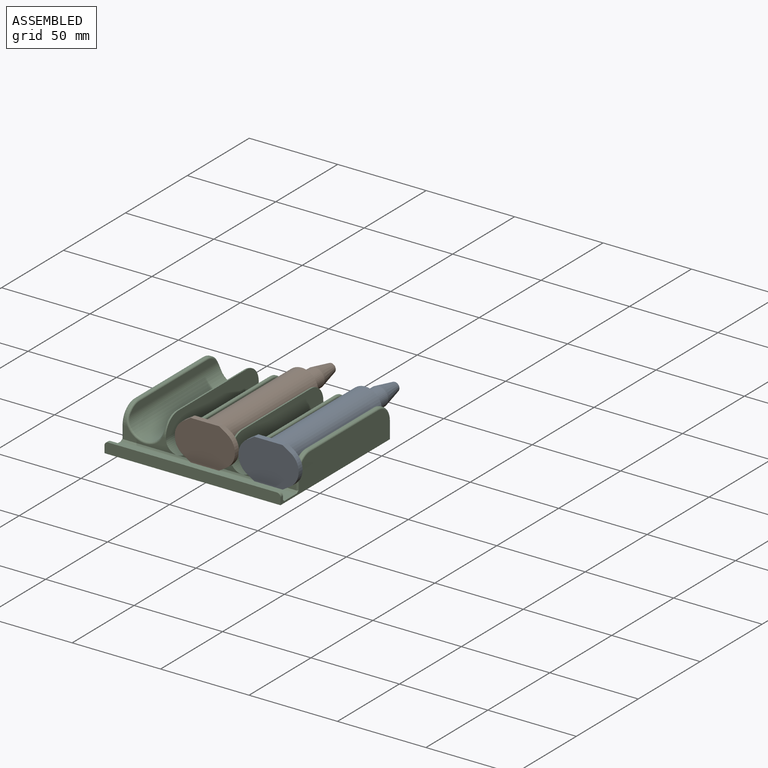
[diagram: assembled view]
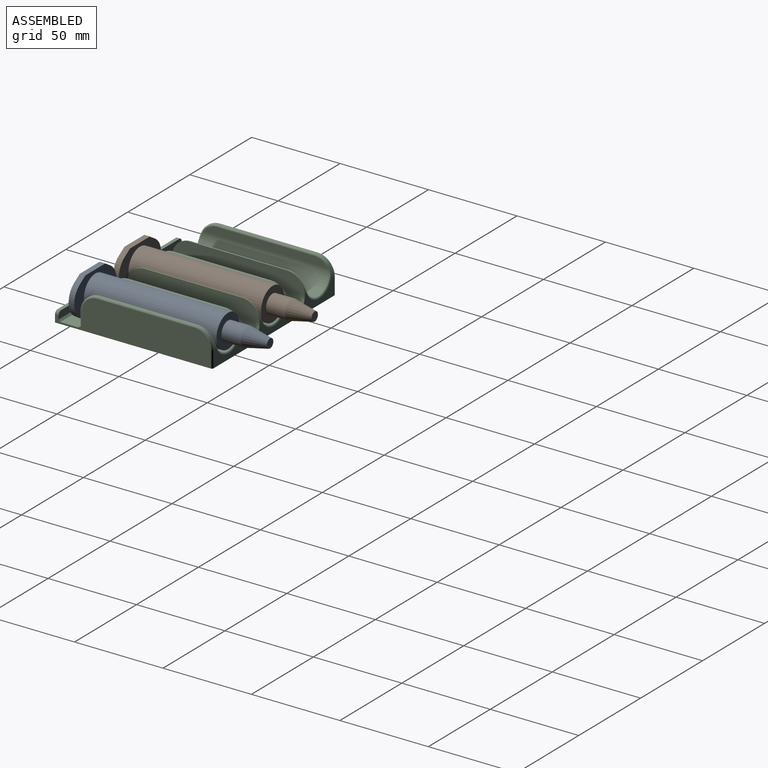
[diagram: assembled view, second angle]
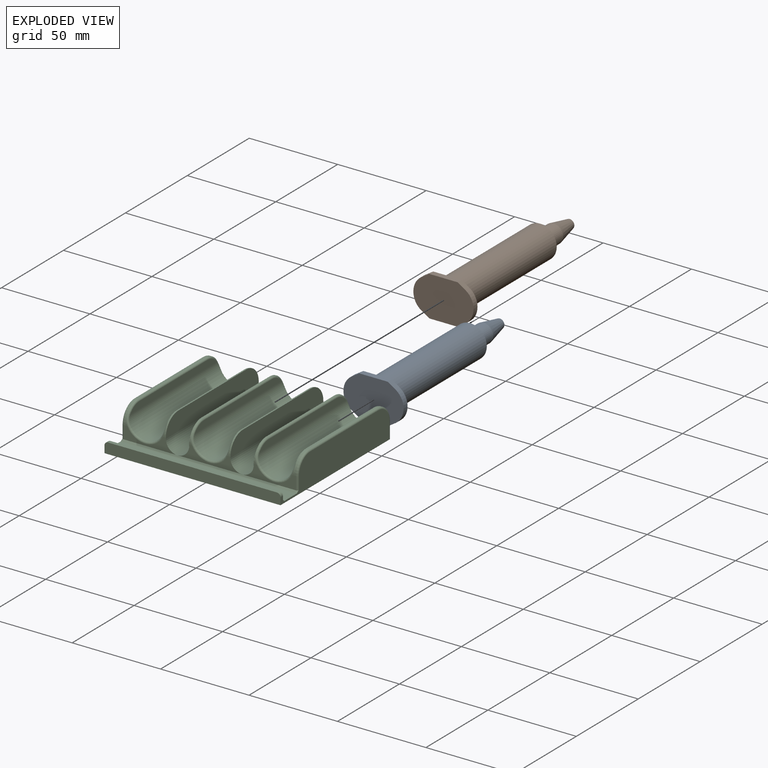
[diagram: exploded view]
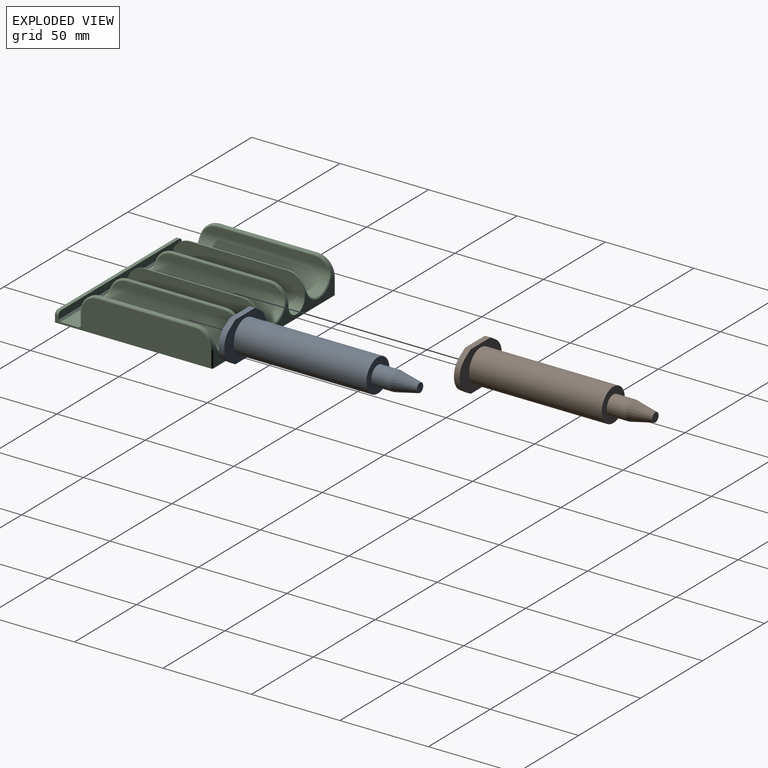
[diagram: exploded view, second angle]
ASSEMBLY  parts=3 mates=2
PART A: 19 faces, bbox 34x22.8x102 mm
  f0: plane 3.2x0.32mm, normal (1,0,0), area 1mm2, adj f1,f11,f12,f13
  f1: cylinder r=10mm len=8.44mm, axis (0,0,-1), area 32.1mm2, adj f0,f2,f12,f13
  f2: plane 4.37x3.2mm, normal (0.54,0.84,0), area 16.6mm2, adj f1,f3,f12,f13
  f3: plane 16x3.2mm, normal (0,1,0), area 51.2mm2, adj f2,f4,f12,f13
  f4: plane 4.37x3.2mm, normal (-0.54,0.84,0), area 16.6mm2, adj f3,f5,f12,f13
  f5: cylinder r=10mm len=8.44mm, axis (0,0,-1), area 32.1mm2, adj f4,f6,f12,f13
  f6: plane 3.2x0.32mm, normal (-1,0,0), area 1mm2, adj f5,f7,f12,f13
  f7: cylinder r=10mm len=8.44mm, axis (0,0,-1), area 32.1mm2, adj f6,f8,f12,f13
  f8: plane 4.37x3.2mm, normal (-0.54,-0.84,0), area 16.6mm2, adj f7,f9,f12,f13
  f9: plane 16x3.2mm, normal (0,-1,0), area 51.2mm2, adj f8,f10,f12,f13
  f10: plane 4.37x3.2mm, normal (0.54,-0.84,0), area 16.6mm2, adj f9,f11,f12,f13
  f11: cylinder r=10mm len=8.44mm, axis (0,0,-1), area 32.1mm2, adj f0,f10,f12,f13
  f12: plane 34x22.75mm, normal (0,0,1), area 380mm2, adj f0,f1,f2,f3,f4,f5,f6,f7
  f13: plane 34x22.75mm, normal (0,0,-1), area 651.7mm2, adj f0,f1,f2,f3,f4,f5,f6,f7
  f14: cylinder r=9.3mm len=75mm, axis (0,0,-1), area 4382.5mm2, adj f12,f15
  f15: plane 18.6x18.6mm, normal (0,0,1), area 181.8mm2, adj f14,f16
  f16: cylinder r=5.35mm len=10.8mm, axis (0,0,-1), area 363mm2, adj f15,f17
  f17: cone r=5.35mm half-angle=12deg, axis (0,0,-1), area 331.4mm2, adj f16,f18
  f18: plane 5.17x5.17mm, normal (0,0,1), area 21mm2, adj f17
PART B: same geometry as A
PART C: 96 faces, bbox 101.5x89.8x20.1 mm
  f0: plane 30.5x7.25mm, normal (0,-1,0), area 92.5mm2, adj f24,f25,f36,f37,f44,f80,f91
  f1: plane 36.5x7.25mm, normal (0,-1,0), area 97.5mm2, adj f16,f17,f23,f24,f32,f33,f56,f91
  f2: plane 30.5x7.25mm, normal (0,-1,0), area 92.5mm2, adj f15,f16,f34,f35,f68,f85,f91
  f3: plane 69.97x4mm, normal (-1,0,0), area 262.1mm2, adj f4,f48,f50,f52
  f4: cylinder r=10.25mm len=73mm, axis (0,-1,0), area 2341.7mm2, adj f3,f5,f44,f45,f46,f53,f54,f55
  f5: plane 69.97x4mm, normal (1,0,0), area 262.1mm2, adj f4,f47,f49,f51
  f6: plane 55x1mm, normal (0,0,1), area 55mm2, adj f36,f42,f49,f82
  f7: plane 88x18.25mm, normal (-1,0,0), area 1320.1mm2, adj f8,f28,f29,f30,f80,f81,f82,f83
  f8: plane 99.5x89mm, normal (0,0,-1), area 8855.1mm2, adj f7,f9,f27,f30,f84,f89
  f9: plane 88x18.25mm, normal (1,0,0), area 1320.1mm2, adj f8,f28,f29,f30,f85,f86,f87,f88
  f10: plane 55x1mm, normal (0,0,1), area 55mm2, adj f35,f41,f74,f87
  f11: plane 69.97x4mm, normal (-1,0,0), area 262.1mm2, adj f12,f72,f74,f76
  f12: cylinder r=10.25mm len=73mm, axis (0,-1,0), area 2341.7mm2, adj f11,f13,f68,f69,f70,f77,f78,f79
  f13: plane 69.97x4mm, normal (1,0,0), area 262.1mm2, adj f12,f71,f73,f75
  f14: plane 55x0.4mm, normal (0,0,1), area 22mm2, adj f15,f34,f40,f73
  f15: plane 75x10.65mm, normal (-1,0,0), area 755.8mm2, adj f2,f14,f16,f27,f34,f40
  f16: cylinder r=6.6mm len=75mm, axis (0,-1,0), area 1555.1mm2, adj f1,f2,f15,f17,f27
  f17: plane 75x10.65mm, normal (1,0,0), area 755.8mm2, adj f1,f16,f18,f27,f33,f39
  f18: plane 55x0.4mm, normal (0,0,1), area 22mm2, adj f17,f33,f39,f62
  f19: plane 69.97x4mm, normal (-1,0,0), area 262.1mm2, adj f20,f60,f62,f64
  f20: cylinder r=10.25mm len=73mm, axis (0,-1,0), area 2341.7mm2, adj f19,f21,f56,f57,f58,f65,f66,f67
  f21: plane 69.97x4mm, normal (1,0,0), area 262.1mm2, adj f20,f59,f61,f63
  f22: plane 55x0.4mm, normal (0,0,1), area 22mm2, adj f23,f32,f38,f61
  f23: plane 75x10.65mm, normal (-1,0,0), area 755.8mm2, adj f1,f22,f24,f27,f32,f38
  f24: cylinder r=6.6mm len=75mm, axis (0,-1,0), area 1555.1mm2, adj f0,f1,f23,f25,f27
  f25: plane 75x10.65mm, normal (1,0,0), area 755.8mm2, adj f0,f24,f26,f27,f37,f43
  f26: plane 55x0.4mm, normal (0,0,1), area 22mm2, adj f25,f37,f43,f50
  f27: plane 97.5x9.25mm, normal (0,1,0), area 477.5mm2, adj f8,f15,f16,f17,f23,f24,f25,f38
  f28: plane 99.5x10.27mm, normal (0,0,1), area 995.2mm2, adj f7,f9,f90,f91,f92,f93
  f29: plane 99.5x4mm, normal (0,1,0), area 396.3mm2, adj f7,f9,f31,f93,f94,f95
  f30: plane 99.5x6mm, normal (0,-1,0), area 595.3mm2, adj f7,f8,f9,f31,f94,f95
  f31: plane 95.5x2mm, normal (0,0,1), area 191mm2, adj f29,f30,f94,f95
  f32: cylinder r=10mm len=10mm, axis (-1,0,0), area 8.4mm2, adj f1,f22,f23,f57,f59
  f33: cylinder r=10mm len=10mm, axis (-1,0,0), area 8.4mm2, adj f1,f17,f18,f58,f60
  f34: cylinder r=10mm len=10mm, axis (-1,0,0), area 8.4mm2, adj f2,f14,f15,f69,f71
  f35: cylinder r=10mm len=10mm, axis (-1,0,0), area 17.9mm2, adj f2,f10,f70,f72,f86
  f36: cylinder r=10mm len=10mm, axis (-1,0,0), area 17.9mm2, adj f0,f6,f45,f47,f81
  f37: cylinder r=10mm len=10mm, axis (-1,0,0), area 8.4mm2, adj f0,f25,f26,f46,f48
  f38: cylinder r=10mm len=10mm, axis (1,0,0), area 8.4mm2, adj f22,f23,f27,f63,f65
  f39: cylinder r=10mm len=10mm, axis (1,0,0), area 8.4mm2, adj f17,f18,f27,f64,f66
  f40: cylinder r=10mm len=10mm, axis (1,0,0), area 8.4mm2, adj f14,f15,f27,f75,f77
  f41: cylinder r=10mm len=10mm, axis (1,0,0), area 17.9mm2, adj f10,f27,f76,f78,f88
  f42: cylinder r=10mm len=10mm, axis (1,0,0), area 17.9mm2, adj f6,f27,f51,f53,f83
  f43: cylinder r=10mm len=10mm, axis (1,0,0), area 8.4mm2, adj f25,f26,f27,f52,f54
  f44: torus R=11.25mm, axis (0,-1,0), area 37mm2, adj f0,f4,f45,f46
  f45: bspline ~8.29x3.79mm, area 8.5mm2, adj f4,f36,f44,f47
  f46: bspline ~7.06x2.81mm, area 8.5mm2, adj f4,f37,f44,f48
  f47: torus R=9mm, axis (1,0,0), area 14.9mm2, adj f5,f36,f45,f49
  f48: torus R=9mm, axis (1,0,0), area 14.9mm2, adj f3,f37,f46,f50
  f49: cylinder r=1mm len=55mm, axis (0,-1,0), area 86.4mm2, adj f5,f6,f47,f51
  f50: cylinder r=1mm len=55mm, axis (0,-1,0), area 86.4mm2, adj f3,f26,f48,f52
  f51: torus R=9mm, axis (1,0,0), area 14.9mm2, adj f5,f42,f49,f53
  f52: torus R=9mm, axis (1,0,0), area 14.9mm2, adj f3,f43,f50,f54
  f53: bspline ~8.29x3.79mm, area 8.5mm2, adj f4,f42,f51,f55
  f54: bspline ~8.29x3.79mm, area 8.5mm2, adj f4,f43,f52,f55
  f55: torus R=11.25mm, axis (0,-1,0), area 37mm2, adj f4,f27,f53,f54
  f56: torus R=11.25mm, axis (0,-1,0), area 37mm2, adj f1,f20,f57,f58
  f57: bspline ~8.29x3.79mm, area 8.5mm2, adj f20,f32,f56,f59
  f58: bspline ~8.29x3.79mm, area 8.5mm2, adj f20,f33,f56,f60
  f59: torus R=9mm, axis (1,0,0), area 14.9mm2, adj f21,f32,f57,f61
  f60: torus R=9mm, axis (1,0,0), area 14.9mm2, adj f19,f33,f58,f62
  f61: cylinder r=1mm len=55mm, axis (0,-1,0), area 86.4mm2, adj f21,f22,f59,f63
  f62: cylinder r=1mm len=55mm, axis (0,-1,0), area 86.4mm2, adj f18,f19,f60,f64
  f63: torus R=9mm, axis (1,0,0), area 14.9mm2, adj f21,f38,f61,f65
  f64: torus R=9mm, axis (1,0,0), area 14.9mm2, adj f19,f39,f62,f66
  f65: bspline ~8.29x3.79mm, area 8.5mm2, adj f20,f38,f63,f67
  f66: bspline ~7.06x2.81mm, area 8.5mm2, adj f20,f39,f64,f67
  f67: torus R=11.25mm, axis (0,-1,0), area 37mm2, adj f20,f27,f65,f66
  f68: torus R=11.25mm, axis (0,-1,0), area 37mm2, adj f2,f12,f69,f70
  f69: bspline ~7.06x2.81mm, area 8.5mm2, adj f12,f34,f68,f71
  f70: bspline ~8.29x3.79mm, area 8.5mm2, adj f12,f35,f68,f72
  f71: torus R=9mm, axis (1,0,0), area 14.9mm2, adj f13,f34,f69,f73
  f72: torus R=9mm, axis (1,0,0), area 14.9mm2, adj f11,f35,f70,f74
  f73: cylinder r=1mm len=55mm, axis (0,-1,0), area 86.4mm2, adj f13,f14,f71,f75
  f74: cylinder r=1mm len=55mm, axis (0,-1,0), area 86.4mm2, adj f10,f11,f72,f76
  f75: torus R=9mm, axis (1,0,0), area 14.9mm2, adj f13,f40,f73,f77
  f76: torus R=9mm, axis (1,0,0), area 14.9mm2, adj f11,f41,f74,f78
  f77: bspline ~8.29x3.79mm, area 8.5mm2, adj f12,f40,f75,f79
  f78: bspline ~7.06x2.81mm, area 8.5mm2, adj f12,f41,f76,f79
  f79: torus R=11.25mm, axis (0,-1,0), area 37mm2, adj f12,f27,f77,f78
  f80: cylinder r=1mm len=7.25mm, axis (0,0,-1), area 11.4mm2, adj f0,f7,f81,f92
  f81: torus R=9mm, axis (-1,0,0), area 23.8mm2, adj f7,f36,f80,f82
  f82: cylinder r=1mm len=55mm, axis (0,-1,0), area 86.4mm2, adj f6,f7,f81,f83
  f83: torus R=9mm, axis (-1,0,0), area 23.8mm2, adj f7,f42,f82,f84
  f84: cylinder r=1mm len=9.25mm, axis (0,0,1), area 14.5mm2, adj f7,f8,f27,f83
  f85: cylinder r=1mm len=7.25mm, axis (0,0,1), area 11.4mm2, adj f2,f9,f86,f90
  f86: torus R=9mm, axis (1,0,0), area 23.8mm2, adj f9,f35,f85,f87
  f87: cylinder r=1mm len=55mm, axis (0,1,0), area 86.4mm2, adj f9,f10,f86,f88
  f88: torus R=9mm, axis (1,0,0), area 23.8mm2, adj f9,f41,f87,f89
  f89: cylinder r=1mm len=9.25mm, axis (0,0,-1), area 14.5mm2, adj f8,f9,f27,f88
  f90: cone r=2mm half-angle=45deg, axis (0,0,-1), area 1.6mm2, adj f9,f28,f85,f91
  f91: plane 97.5x1mm, normal (0,-0.71,0.71), area 137.9mm2, adj f0,f1,f2,f28,f90,f92
  f92: cone r=2mm half-angle=45deg, axis (0,0,-1), area 1.6mm2, adj f7,f28,f80,f91
  f93: plane 99.5x1mm, normal (0,0.71,0.71), area 140.7mm2, adj f7,f9,f28,f29
  f94: cylinder r=2mm len=2mm, axis (0,-1,0), area 6.3mm2, adj f7,f29,f30,f31
  f95: cylinder r=2mm len=2mm, axis (0,-1,0), area 6.3mm2, adj f9,f29,f30,f31
PLACE A rot(axis=(-1,0,0),90deg) t=(13.97,-41.79,31.52)mm
PLACE B rot(axis=(-1,0,0),90deg) t=(-22.03,-41.79,31.52)mm
PLACE C t=(-0.74,-37.79,0.79)mm
MATE planar B.f14 <-> C.f20  axis (0,-1,0) through (-0.74,-36.79,14.79)mm
MATE planar A.f14 <-> C.f12  axis (0,-1,0) through (35.26,-36.79,14.79)mm
